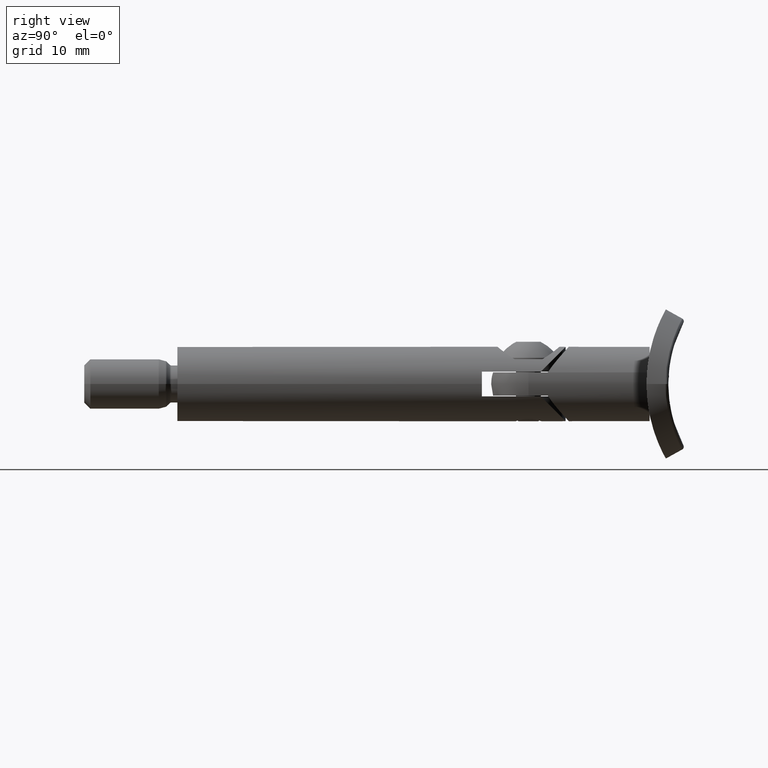
[diagram: clean part render]
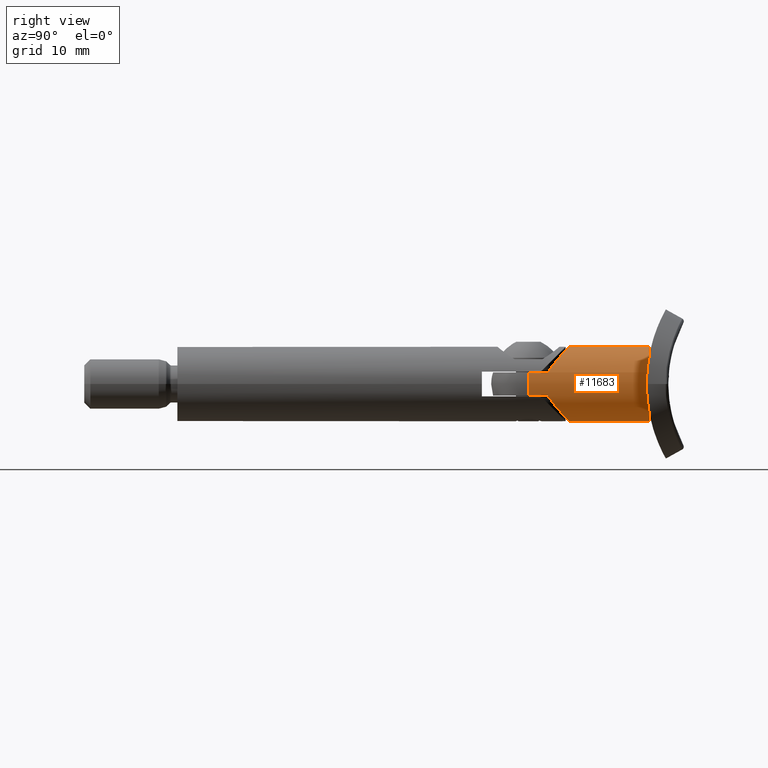
[diagram: same view with one face highlighted and labeled with its STEP entity id]
A machine part, right view. The second image highlights one B-rep face of the part: STEP entity #11683.
In plain terms, the highlighted cylindrical surface (bore or boss wall) has radius 6 mm, axis along (0, -1, -0).
Its self-contained STEP definition (entity closure, byte-faithful):
#145 = CARTESIAN_POINT ( 'NONE',  ( 2.165471735492421779, 9.299283041295447916, -5.603948372236426501 ) ) ;
#186 = CARTESIAN_POINT ( 'NONE',  ( -1.875000000000001776, 9.124999999999994671, 5.699506557588999378 ) ) ;
#253 = CARTESIAN_POINT ( 'NONE',  ( 5.533975599518213606, 12.07229902574371572, 2.342120990994259966 ) ) ;
#401 = VERTEX_POINT ( 'NONE', #792 ) ;
#489 = CARTESIAN_POINT ( 'NONE',  ( -5.402969927907900427, 11.95294901552457212, -2.628867403611106379 ) ) ;
#549 = CARTESIAN_POINT ( 'NONE',  ( -5.533975599518214494, 12.07229902574371572, 2.342120990994259522 ) ) ;
#556 = EDGE_CURVE ( 'NONE', #1280, #401, #9606, .T. ) ;
#560 = DIRECTION ( 'NONE',  ( 2.696301922142130194E-33, 0.000000000000000000, -1.000000000000000000 ) ) ;
#605 = CARTESIAN_POINT ( 'NONE',  ( -4.347331513690996019, 11.01182362367340417, 4.179968714071661928 ) ) ;
#653 = CARTESIAN_POINT ( 'NONE',  ( -1.875000000000001776, 9.124999999999994671, 5.699506557588999378 ) ) ;
#692 = CARTESIAN_POINT ( 'NONE',  ( 5.374623752436474566E-33, 6.000000000000005329, 0.000000000000000000 ) ) ;
#702 = CARTESIAN_POINT ( 'NONE',  ( -5.968448863603417642, 12.47084509017784981, 0.7045191780326010011 ) ) ;
#792 = CARTESIAN_POINT ( 'NONE',  ( 1.875000000000001776, 9.124999999999994671, -5.699506557588999378 ) ) ;
#1280 = VERTEX_POINT ( 'NONE', #7399 ) ;
#1281 = CARTESIAN_POINT ( 'NONE',  ( 4.916262054299631146, 11.51470031006891048, -3.453046256055512853 ) ) ;
#1343 = CARTESIAN_POINT ( 'NONE',  ( 6.000331943230008847, 12.50030640904586221, -0.1625549102638968180 ) ) ;
#1445 = CARTESIAN_POINT ( 'NONE',  ( 5.999301171840913049, 12.49935492803685122, 0.3605767057599157388 ) ) ;
#1483 = EDGE_LOOP ( 'NONE', ( #2895 ) ) ;
#1638 = CARTESIAN_POINT ( 'NONE',  ( -1.875000000000001776, 6.000000000000005329, 5.699506557588999378 ) ) ;
#1665 = DIRECTION ( 'NONE',  ( -2.696301922142130194E-33, 0.000000000000000000, 1.000000000000000000 ) ) ;
#1751 = CARTESIAN_POINT ( 'NONE',  ( -4.916262054299632034, 11.51470031006890693, -3.453046256055512409 ) ) ;
#1802 = CARTESIAN_POINT ( 'NONE',  ( -2.165471735492423999, 9.299283041295447916, -5.603948372236427389 ) ) ;
#1917 = CARTESIAN_POINT ( 'NONE',  ( -2.435892575228126411, 9.486065115203496489, 5.490915627202842764 ) ) ;
#2551 = CARTESIAN_POINT ( 'NONE',  ( 1.875000000000001776, 25.49999999999999645, -5.699506557588999378 ) ) ;
#2720 = CARTESIAN_POINT ( 'NONE',  ( 5.962985061293454514, 12.46584545384666676, -0.6880567118182585595 ) ) ;
#2866 = DIRECTION ( 'NONE',  ( 6.270394377842564265E-33, 1.000000000000000000, -5.200459125639017196E-51 ) ) ;
#2895 = ORIENTED_EDGE ( 'NONE', *, *, #8259, .F. ) ;
#2991 = CARTESIAN_POINT ( 'NONE',  ( -2.952969745838433635, 9.865114185793785850, 5.231032091592899391 ) ) ;
#3055 = CARTESIAN_POINT ( 'NONE',  ( -1.875000000000001776, 9.124999999999994671, -5.699506557588999378 ) ) ;
#3113 = CARTESIAN_POINT ( 'NONE',  ( -6.000331943230008847, 12.50030640904586399, -0.1625549102638956522 ) ) ;
#3118 = CIRCLE ( 'NONE', #11502, 6.000000000000000888 ) ;
#3202 = CARTESIAN_POINT ( 'NONE',  ( -5.992946940085367658, 12.49348747734984677, -0.3394110387251252359 ) ) ;
#3238 = ORIENTED_EDGE ( 'NONE', *, *, #10642, .T. ) ;
#3372 = EDGE_CURVE ( 'NONE', #3760, #3693, #7700, .T. ) ;
#3427 = EDGE_CURVE ( 'NONE', #3693, #15958, #8787, .T. ) ;
#3440 = DIRECTION ( 'NONE',  ( 2.696301922142130194E-33, 0.000000000000000000, -1.000000000000000000 ) ) ;
#3493 = CIRCLE ( 'NONE', #4820, 6.000000000000000888 ) ;
#3693 = VERTEX_POINT ( 'NONE', #186 ) ;
#3760 = VERTEX_POINT ( 'NONE', #1638 ) ;
#3789 = CARTESIAN_POINT ( 'NONE',  ( 4.540473561626751753, 11.18248850333112010, -3.934115004568863760 ) ) ;
#3845 = CARTESIAN_POINT ( 'NONE',  ( 5.881553957054157067, 12.39081723198165541, -1.198706441346622187 ) ) ;
#4087 = FACE_OUTER_BOUND ( 'NONE', #12766, .T. ) ;
#4250 = CARTESIAN_POINT ( 'NONE',  ( -5.878530023254685766, 12.38803403405258940, 1.213493734268718427 ) ) ;
#4462 = CARTESIAN_POINT ( 'NONE',  ( -5.752901328581311091, 12.27260472444943495, 1.712665152811585711 ) ) ;
#4820 = AXIS2_PLACEMENT_3D ( 'NONE', #692, #9422, #15630 ) ;
#5101 = CIRCLE ( 'NONE', #10958, 6.000000000000000888 ) ;
#5106 = DIRECTION ( 'NONE',  ( 6.270394377842564265E-33, 1.000000000000000000, -5.200459125639017196E-51 ) ) ;
#5152 = CARTESIAN_POINT ( 'NONE',  ( 5.844978074349970854, 12.35715918803105673, -1.365743324101389433 ) ) ;
#5207 = CARTESIAN_POINT ( 'NONE',  ( 5.707417375835262874, 12.23089832068805904, -1.858353953437219985 ) ) ;
#5259 = CARTESIAN_POINT ( 'NONE',  ( 5.968448863603416754, 12.47084509017784448, 0.7045191780326002240 ) ) ;
#5403 = DIRECTION ( 'NONE',  ( -6.270394377842564265E-33, -1.000000000000000000, 5.200459125639017196E-51 ) ) ;
#5420 = VECTOR ( 'NONE', #12745, 1000.000000000000000 ) ;
#5422 = CARTESIAN_POINT ( 'NONE',  ( 2.284215094785504205E-32, 25.49999999999999645, 0.000000000000000000 ) ) ;
#5489 = CARTESIAN_POINT ( 'NONE',  ( -3.908788821570148730, 10.63855680015490002, -4.561684255362868257 ) ) ;
#5540 = CARTESIAN_POINT ( 'NONE',  ( -5.844978074349971742, 12.35715918803105673, -1.365743324101388323 ) ) ;
#5550 = CARTESIAN_POINT ( 'NONE',  ( 1.875000000000001776, 25.49999999999999645, 5.699506557588999378 ) ) ;
#5702 = CARTESIAN_POINT ( 'NONE',  ( -5.881553957054156179, 12.39081723198165363, -1.198706441346620410 ) ) ;
#6288 = CARTESIAN_POINT ( 'NONE',  ( 2.952969745838433191, 9.865114185793784074, 5.231032091592900279 ) ) ;
#6408 = CARTESIAN_POINT ( 'NONE',  ( 4.338749211671258266, 11.00622850641173756, -4.154858430257192481 ) ) ;
#6458 = CARTESIAN_POINT ( 'NONE',  ( 4.911105298138324748, 11.51010221644048137, 3.460332669807180128 ) ) ;
#6544 = VERTEX_POINT ( 'NONE', #10559 ) ;
#6574 = ORIENTED_EDGE ( 'NONE', *, *, #3372, .F. ) ;
#6753 = CARTESIAN_POINT ( 'NONE',  ( -3.203186419541644625, 10.06088980599747096, -5.081736704168082319 ) ) ;
#6810 = CARTESIAN_POINT ( 'NONE',  ( -3.908599352263412374, 10.63138324985793304, 4.588644465451447552 ) ) ;
#6905 = CARTESIAN_POINT ( 'NONE',  ( -5.397768190748373662, 11.94822271513284306, 2.639629955689388741 ) ) ;
#6939 = ORIENTED_EDGE ( 'NONE', *, *, #556, .T. ) ;
#7390 = FACE_OUTER_BOUND ( 'NONE', #1483, .T. ) ;
#7399 = CARTESIAN_POINT ( 'NONE',  ( 1.875000000000001776, 9.124999999999994671, 5.699506557588999378 ) ) ;
#7404 = EDGE_CURVE ( 'NONE', #6544, #401, #10561, .T. ) ;
#7469 = CARTESIAN_POINT ( 'NONE',  ( 1.875000000000001776, 6.000000000000005329, 5.699506557588999378 ) ) ;
#7484 = CARTESIAN_POINT ( 'NONE',  ( 5.752901328581310203, 12.27260472444943673, 1.712665152811585934 ) ) ;
#7605 = CARTESIAN_POINT ( 'NONE',  ( 5.402969927907899539, 11.95294901552457389, -2.628867403611108156 ) ) ;
#7652 = CARTESIAN_POINT ( 'NONE',  ( 1.875000000000001776, 9.124999999999994671, 5.699506557588999378 ) ) ;
#7700 = LINE ( 'NONE', #10609, #8296 ) ;
#7822 = LINE ( 'NONE', #5550, #9006 ) ;
#7970 = CARTESIAN_POINT ( 'NONE',  ( -5.538450211437707438, 12.07637670554109555, -2.331938963265058451 ) ) ;
#8063 = CARTESIAN_POINT ( 'NONE',  ( -4.911105298138323860, 11.51010221644048137, 3.460332669807179240 ) ) ;
#8141 = CARTESIAN_POINT ( 'NONE',  ( -1.875000000000001776, 6.000000000000005329, -5.699506557588999378 ) ) ;
#8180 = CARTESIAN_POINT ( 'NONE',  ( -5.702564255147020589, 12.22645336163186869, 1.873063021910694514 ) ) ;
#8259 = EDGE_CURVE ( 'NONE', #15605, #15605, #5101, .T. ) ;
#8296 = VECTOR ( 'NONE', #9428, 1000.000000000000000 ) ;
#8425 = CARTESIAN_POINT ( 'NONE',  ( 6.664339415002258146E-33, 25.49999999999999645, 6.000000000000000888 ) ) ;
#8707 = ORIENTED_EDGE ( 'NONE', *, *, #12048, .F. ) ;
#8775 = CARTESIAN_POINT ( 'NONE',  ( 5.091664601751723751, 11.67191029162921900, -3.190294571182189287 ) ) ;
#8779 = ORIENTED_EDGE ( 'NONE', *, *, #9217, .F. ) ;
#8787 = B_SPLINE_CURVE_WITH_KNOTS ( 'NONE', 3,
 ( #653, #9381, #1917, #2991, #10664, #6810, #605, #8063, #9331, #6905, #549, #8180, #4462, #12966, #4250, #702, #10562, #3113, #3202, #14266, #13180, #5702, #5540, #14430, #10511, #7970, #489, #9211, #1751, #10457, #11716, #5489, #14217, #6753, #15469, #9264, #1802, #3055 ),
 .UNSPECIFIED., .F., .F.,
 ( 4, 2, 2, 2, 2, 2, 2, 2, 2, 2, 2, 2, 2, 2, 2, 2, 2, 2, 4 ),
 ( 0.000000000000000000, 0.001036031452614965664, 0.002072062905229931327, 0.004144125810459867859, 0.005180157263074834824, 0.006216188715689800054, 0.006734204441997283970, 0.007252220168304766151, 0.008288251620919732249, 0.008806267347227215297, 0.009324283073534696611, 0.009842298799842179660, 0.01036031452614966444, 0.01139634597876463054, 0.01243237743137959664, 0.01346840888399456621, 0.01450444033660953230, 0.01554047178922450187, 0.01657650324183946797 ),
 .UNSPECIFIED. ) ;
#8820 = CARTESIAN_POINT ( 'NONE',  ( 4.347331513690996907, 11.01182362367340772, 4.179968714071664593 ) ) ;
#8873 = CARTESIAN_POINT ( 'NONE',  ( 1.875000000000001776, 9.124999999999994671, -5.699506557588999378 ) ) ;
#8925 = CARTESIAN_POINT ( 'NONE',  ( 2.165372878115555455, 9.299223726869326967, 5.603980893925760043 ) ) ;
#8983 = CARTESIAN_POINT ( 'NONE',  ( 5.878530023254685766, 12.38803403405258940, 1.213493734268718205 ) ) ;
#9006 = VECTOR ( 'NONE', #5403, 1000.000000000000000 ) ;
#9211 = CARTESIAN_POINT ( 'NONE',  ( -5.091664601751724639, 11.67191029162921900, -3.190294571182187955 ) ) ;
#9217 = EDGE_CURVE ( 'NONE', #1280, #14377, #7822, .T. ) ;
#9264 = CARTESIAN_POINT ( 'NONE',  ( -2.436641307235134057, 9.486557849900696837, -5.490643595582533010 ) ) ;
#9331 = CARTESIAN_POINT ( 'NONE',  ( -5.084483756076971339, 11.66545912469394963, 3.201807720369405086 ) ) ;
#9381 = CARTESIAN_POINT ( 'NONE',  ( -2.165372878115555455, 9.299223726869326967, 5.603980893925762707 ) ) ;
#9422 = DIRECTION ( 'NONE',  ( 6.270394377842564265E-33, 1.000000000000000000, -5.200459125639017196E-51 ) ) ;
#9428 = DIRECTION ( 'NONE',  ( 6.270394377842564265E-33, 1.000000000000000000, -5.200459125639017196E-51 ) ) ;
#9606 = B_SPLINE_CURVE_WITH_KNOTS ( 'NONE', 3,
 ( #7652, #8925, #15113, #6288, #14957, #15009, #8820, #6458, #15173, #11310, #253, #13755, #7484, #11474, #8983, #5259, #1445, #1343, #11356, #2720, #12617, #3845, #5152, #12673, #5207, #13966, #7605, #8775, #1281, #3789, #6408, #9993, #11252, #10046, #12561, #13812, #145, #8873 ),
 .UNSPECIFIED., .F., .F.,
 ( 4, 2, 2, 2, 2, 2, 2, 2, 2, 2, 2, 2, 2, 2, 2, 2, 2, 2, 4 ),
 ( 0.000000000000000000, 0.001036031452614964580, 0.002072062905229929159, 0.004144125810459864390, 0.005180157263074830487, 0.006216188715689794850, 0.006734204441997277031, 0.007252220168304760080, 0.008288251620919727045, 0.008806267347227208359, 0.009324283073534691407, 0.009842298799842174456, 0.01036031452614966097, 0.01139634597876462881, 0.01243237743137959490, 0.01346840888399456447, 0.01450444033660953230, 0.01554047178922450187, 0.01657650324183946797 ),
 .UNSPECIFIED. ) ;
#9952 = ORIENTED_EDGE ( 'NONE', *, *, #7404, .F. ) ;
#9993 = CARTESIAN_POINT ( 'NONE',  ( 3.908788821570147842, 10.63855680015489824, -4.561684255362866480 ) ) ;
#10046 = CARTESIAN_POINT ( 'NONE',  ( 3.203186419541641072, 10.06088980599747273, -5.081736704168082319 ) ) ;
#10320 = CYLINDRICAL_SURFACE ( 'NONE', #14735, 6.000000000000000888 ) ;
#10393 = EDGE_CURVE ( 'NONE', #6544, #11698, #3118, .T. ) ;
#10457 = CARTESIAN_POINT ( 'NONE',  ( -4.540473561626751753, 11.18248850333111655, -3.934115004568864649 ) ) ;
#10511 = CARTESIAN_POINT ( 'NONE',  ( -5.707417375835264650, 12.23089832068806615, -1.858353953437218875 ) ) ;
#10559 = CARTESIAN_POINT ( 'NONE',  ( 1.875000000000001776, 6.000000000000005329, -5.699506557588999378 ) ) ;
#10561 = LINE ( 'NONE', #2551, #13882 ) ;
#10562 = CARTESIAN_POINT ( 'NONE',  ( -5.999301171840913938, 12.49935492803685300, 0.3605767057599157943 ) ) ;
#10609 = CARTESIAN_POINT ( 'NONE',  ( -1.875000000000001776, 25.49999999999999645, 5.699506557588999378 ) ) ;
#10642 = EDGE_CURVE ( 'NONE', #3760, #14377, #3493, .T. ) ;
#10664 = CARTESIAN_POINT ( 'NONE',  ( -3.199166822647293351, 10.05774676843748416, 5.084145294204411414 ) ) ;
#10789 = CARTESIAN_POINT ( 'NONE',  ( 5.374623752436474566E-33, 6.000000000000005329, 0.000000000000000000 ) ) ;
#10958 = AXIS2_PLACEMENT_3D ( 'NONE', #5422, #2866, #1665 ) ;
#11252 = CARTESIAN_POINT ( 'NONE',  ( 3.679300111451203392, 10.44608502935369465, -4.748389396279571351 ) ) ;
#11310 = CARTESIAN_POINT ( 'NONE',  ( 5.397768190748370998, 11.94822271513283773, 2.639629955689386076 ) ) ;
#11356 = CARTESIAN_POINT ( 'NONE',  ( 5.992946940085370322, 12.49348747734984855, -0.3394110387251262351 ) ) ;
#11434 = CARTESIAN_POINT ( 'NONE',  ( -1.875000000000001776, 9.124999999999994671, -5.699506557588999378 ) ) ;
#11474 = CARTESIAN_POINT ( 'NONE',  ( 5.840910011443947170, 12.35341845738016175, 1.383063939325160918 ) ) ;
#11502 = AXIS2_PLACEMENT_3D ( 'NONE', #10789, #14561, #3440 ) ;
#11683 = ADVANCED_FACE ( 'NONE', ( #7390, #4087 ), #10320, .T. ) ;
#11698 = VERTEX_POINT ( 'NONE', #8141 ) ;
#11716 = CARTESIAN_POINT ( 'NONE',  ( -4.338749211671259154, 11.00622850641173578, -4.154858430257191593 ) ) ;
#12048 = EDGE_CURVE ( 'NONE', #15958, #11698, #14006, .T. ) ;
#12537 = CARTESIAN_POINT ( 'NONE',  ( -1.875000000000001776, 25.49999999999999645, -5.699506557588999378 ) ) ;
#12561 = CARTESIAN_POINT ( 'NONE',  ( 2.955671222718650792, 9.867151038863983814, -5.229569349098343700 ) ) ;
#12617 = CARTESIAN_POINT ( 'NONE',  ( 5.940556381582294598, 12.44515927387464593, -0.8598627562042568950 ) ) ;
#12673 = CARTESIAN_POINT ( 'NONE',  ( 5.758066267711471120, 12.27734270178811471, -1.695198033741983634 ) ) ;
#12745 = DIRECTION ( 'NONE',  ( -6.270394377842564265E-33, -1.000000000000000000, 5.200459125639017196E-51 ) ) ;
#12766 = EDGE_LOOP ( 'NONE', ( #9952, #15452, #8707, #15506, #6574, #3238, #8779, #6939 ) ) ;
#12966 = CARTESIAN_POINT ( 'NONE',  ( -5.840910011443945393, 12.35341845738015998, 1.383063939325160696 ) ) ;
#13180 = CARTESIAN_POINT ( 'NONE',  ( -5.940556381582294598, 12.44515927387464771, -0.8598627562042552297 ) ) ;
#13755 = CARTESIAN_POINT ( 'NONE',  ( 5.702564255147019701, 12.22645336163187046, 1.873063021910693848 ) ) ;
#13812 = CARTESIAN_POINT ( 'NONE',  ( 2.436641307235134946, 9.486557849900700390, -5.490643595582534786 ) ) ;
#13882 = VECTOR ( 'NONE', #5106, 1000.000000000000000 ) ;
#13966 = CARTESIAN_POINT ( 'NONE',  ( 5.538450211437708326, 12.07637670554109377, -2.331938963265060227 ) ) ;
#14006 = LINE ( 'NONE', #12537, #5420 ) ;
#14217 = CARTESIAN_POINT ( 'NONE',  ( -3.679300111451203836, 10.44608502935369287, -4.748389396279568686 ) ) ;
#14227 = DIRECTION ( 'NONE',  ( -6.270394377842564265E-33, -1.000000000000000000, 5.200459125639017196E-51 ) ) ;
#14266 = CARTESIAN_POINT ( 'NONE',  ( -5.962985061293456290, 12.46584545384667209, -0.6880567118182576714 ) ) ;
#14329 = CARTESIAN_POINT ( 'NONE',  ( 2.284215094785504205E-32, 25.49999999999999645, 0.000000000000000000 ) ) ;
#14377 = VERTEX_POINT ( 'NONE', #7469 ) ;
#14430 = CARTESIAN_POINT ( 'NONE',  ( -5.758066267711472008, 12.27734270178811471, -1.695198033741982524 ) ) ;
#14561 = DIRECTION ( 'NONE',  ( 6.270394377842564265E-33, 1.000000000000000000, -5.200459125639017196E-51 ) ) ;
#14735 = AXIS2_PLACEMENT_3D ( 'NONE', #14329, #14227, #560 ) ;
#14957 = CARTESIAN_POINT ( 'NONE',  ( 3.199166822647293351, 10.05774676843748594, 5.084145294204413190 ) ) ;
#15009 = CARTESIAN_POINT ( 'NONE',  ( 3.908599352263412374, 10.63138324985793126, 4.588644465451449328 ) ) ;
#15113 = CARTESIAN_POINT ( 'NONE',  ( 2.435892575228126411, 9.486065115203496489, 5.490915627202842764 ) ) ;
#15173 = CARTESIAN_POINT ( 'NONE',  ( 5.084483756076971339, 11.66545912469394963, 3.201807720369405086 ) ) ;
#15452 = ORIENTED_EDGE ( 'NONE', *, *, #10393, .T. ) ;
#15469 = CARTESIAN_POINT ( 'NONE',  ( -2.955671222718649460, 9.867151038863985590, -5.229569349098344588 ) ) ;
#15506 = ORIENTED_EDGE ( 'NONE', *, *, #3427, .F. ) ;
#15605 = VERTEX_POINT ( 'NONE', #8425 ) ;
#15630 = DIRECTION ( 'NONE',  ( 2.664535259100375697E-15, 0.000000000000000000, -1.000000000000000000 ) ) ;
#15958 = VERTEX_POINT ( 'NONE', #11434 ) ;